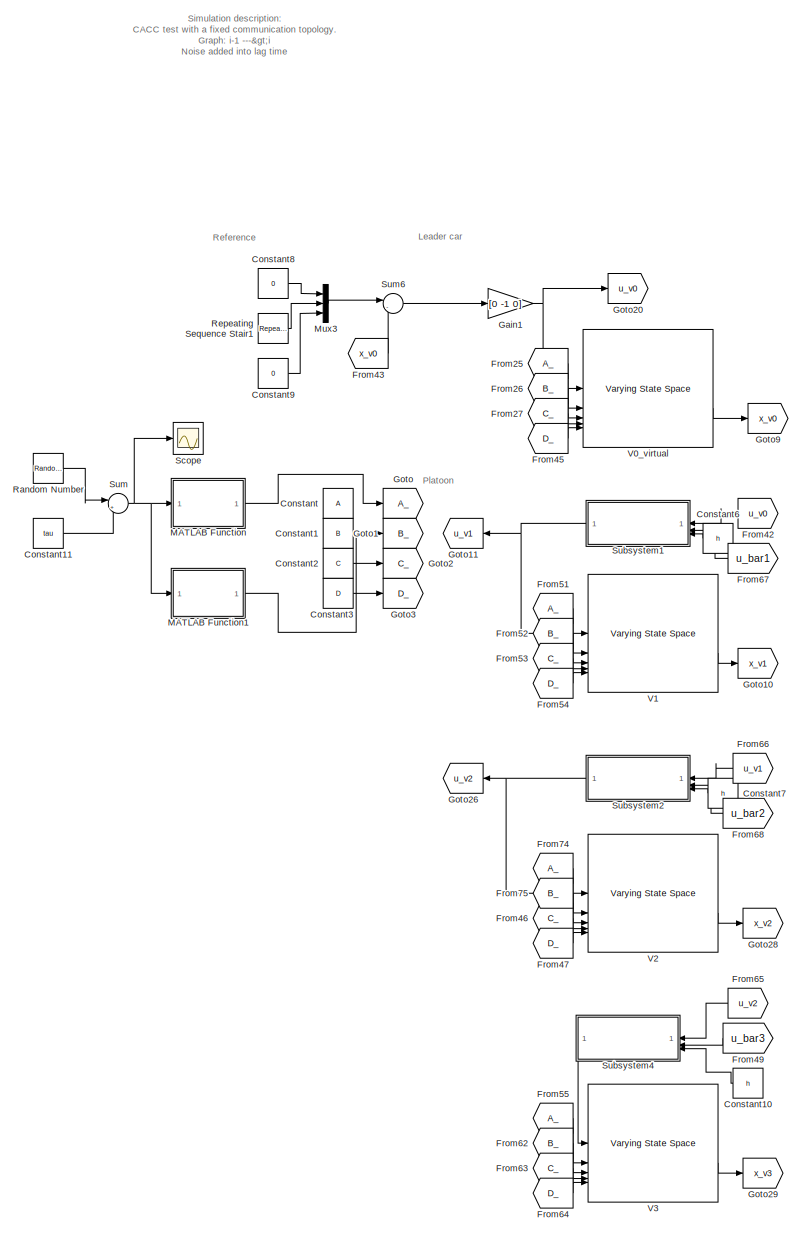
[diagram: root canvas - part 1/2, left side, full height]
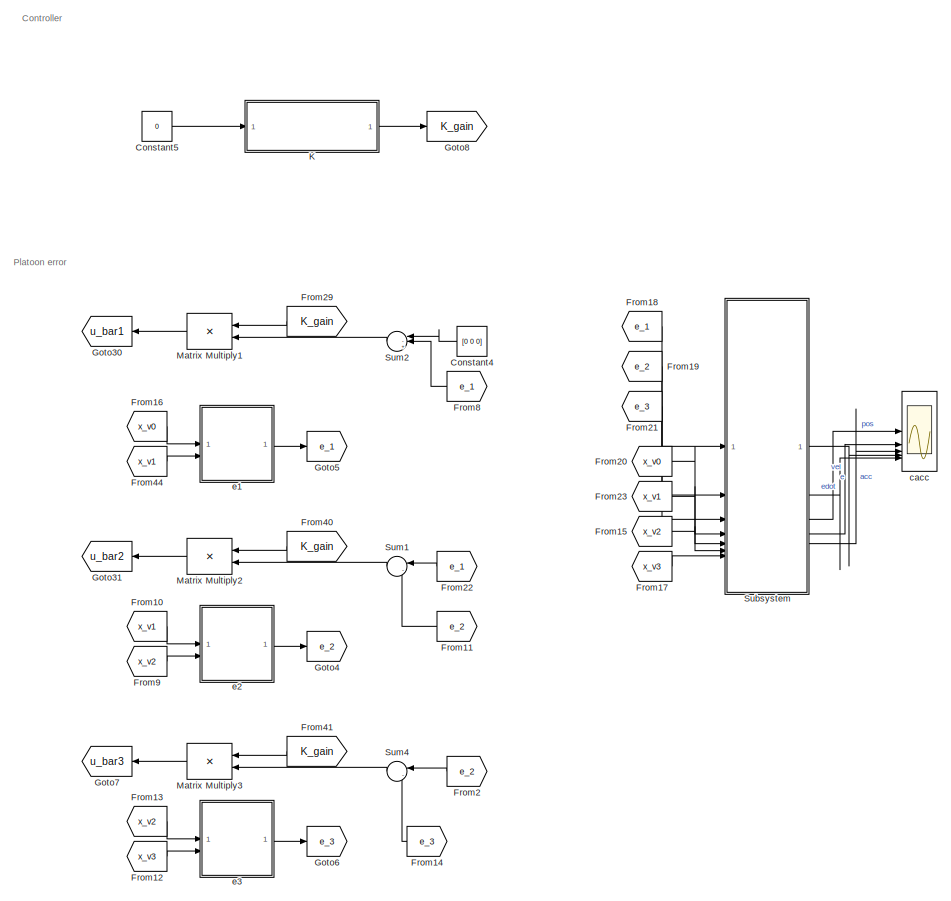
[diagram: root canvas - part 2/2, middle right region]
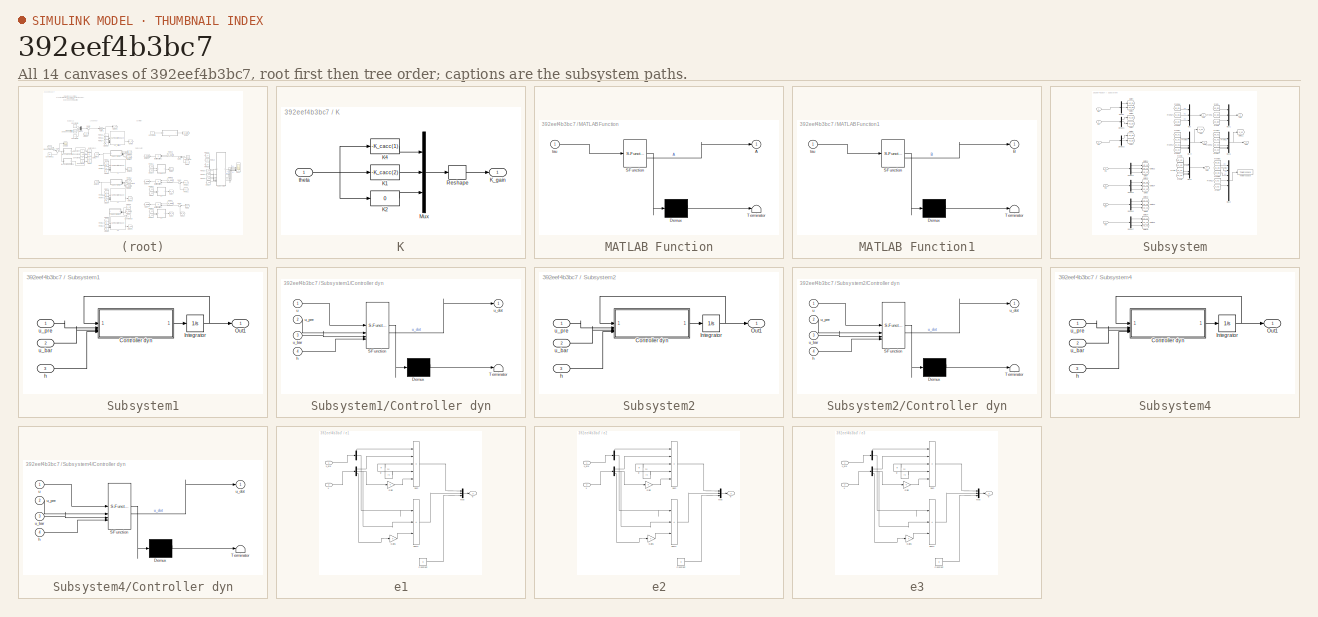
[diagram: thumbnail index - all 14 canvases of the model, root first then tree order]
MODEL slx_392eef4b3bc7
KIND model
CONFIG AbsTol = auto
CONFIG EnableMultiTasking = off
CONFIG FixedStep = auto
CONFIG MaxStep = auto
CONFIG MinStep = auto
CONFIG RelTol = 1e-3
CONFIG SampleTimeConstraint = Unconstrained
CONFIG SolverName = VariableStepAuto
CONFIG StartTime = 0.0
CONFIG StopTime = 60
BLOCK [Constant] Constant
  Value = A
BLOCK [Constant] Constant1
  Value = B
BLOCK [Constant] Constant10
  NameLocation = top
  Value = h
BLOCK [Constant] Constant11
  Value = tau
BLOCK [Constant] Constant2
  Value = C
BLOCK [Constant] Constant3
  Value = D
BLOCK [Constant] Constant4
  NameLocation = top
  Value = [0 0 0]
BLOCK [Constant] Constant5
  Value = 0
BLOCK [Constant] Constant6
  NameLocation = top
  Value = h
BLOCK [Constant] Constant7
  NameLocation = top
  Value = h
BLOCK [Constant] Constant8
  Value = 0
BLOCK [Constant] Constant9
  Value = 0
BLOCK [From] From10
  GotoTag = x_v1
BLOCK [From] From11
  GotoTag = e_2
  NameLocation = top
BLOCK [From] From12
  GotoTag = x_v3
BLOCK [From] From13
  GotoTag = x_v2
BLOCK [From] From14
  GotoTag = e_3
  NameLocation = top
BLOCK [From] From15
  GotoTag = x_v2
BLOCK [From] From16
  GotoTag = x_v0
BLOCK [From] From17
  GotoTag = x_v3
BLOCK [From] From18
  GotoTag = e_1
BLOCK [From] From19
  GotoTag = e_2
BLOCK [From] From2
  GotoTag = e_2
  NameLocation = top
BLOCK [From] From20
  GotoTag = x_v0
BLOCK [From] From21
  GotoTag = e_3
BLOCK [From] From22
  GotoTag = e_1
  NameLocation = top
BLOCK [From] From23
  GotoTag = x_v1
BLOCK [From] From25
  GotoTag = A_
BLOCK [From] From26
  GotoTag = B_
BLOCK [From] From27
  GotoTag = C_
BLOCK [From] From29
  GotoTag = K_gain
  NameLocation = top
BLOCK [From] From40
  GotoTag = K_gain
  NameLocation = top
BLOCK [From] From41
  GotoTag = K_gain
  NameLocation = top
BLOCK [From] From42
  GotoTag = u_v0
BLOCK [From] From43
  GotoTag = x_v0
BLOCK [From] From44
  GotoTag = x_v1
BLOCK [From] From45
  GotoTag = D_
BLOCK [From] From46
  GotoTag = C_
BLOCK [From] From47
  GotoTag = D_
BLOCK [From] From49
  GotoTag = u_bar3
BLOCK [From] From51
  GotoTag = A_
BLOCK [From] From52
  GotoTag = B_
BLOCK [From] From53
  GotoTag = C_
BLOCK [From] From54
  GotoTag = D_
BLOCK [From] From55
  GotoTag = A_
BLOCK [From] From62
  GotoTag = B_
BLOCK [From] From63
  GotoTag = C_
BLOCK [From] From64
  GotoTag = D_
BLOCK [From] From65
  GotoTag = u_v2
BLOCK [From] From66
  GotoTag = u_v1
BLOCK [From] From67
  GotoTag = u_bar1
BLOCK [From] From68
  GotoTag = u_bar2
BLOCK [From] From74
  GotoTag = A_
BLOCK [From] From75
  GotoTag = B_
BLOCK [From] From8
  GotoTag = e_1
  NameLocation = top
BLOCK [From] From9
  GotoTag = x_v2
BLOCK [Gain] Gain1
  Gain = [0 -1 0]
  Multiplication = Matrix(K*u) (u vector)
BLOCK [Goto] Goto
  GotoTag = A_
BLOCK [Goto] Goto1
  GotoTag = B_
BLOCK [Goto] Goto10
  GotoTag = x_v1
BLOCK [Goto] Goto11
  GotoTag = u_v1
  NameLocation = top
BLOCK [Goto] Goto2
  GotoTag = C_
BLOCK [Goto] Goto20
  GotoTag = u_v0
BLOCK [Goto] Goto26
  GotoTag = u_v2
  NameLocation = top
BLOCK [Goto] Goto28
  GotoTag = x_v2
BLOCK [Goto] Goto29
  GotoTag = x_v3
BLOCK [Goto] Goto3
  GotoTag = D_
BLOCK [Goto] Goto30
  GotoTag = u_bar1
  NameLocation = top
BLOCK [Goto] Goto31
  GotoTag = u_bar2
  NameLocation = top
BLOCK [Goto] Goto4
  GotoTag = e_2
  NameLocation = top
BLOCK [Goto] Goto5
  GotoTag = e_1
  NameLocation = top
BLOCK [Goto] Goto6
  GotoTag = e_3
  NameLocation = top
BLOCK [Goto] Goto7
  GotoTag = u_bar3
  NameLocation = top
BLOCK [Goto] Goto8
  GotoTag = K_gain
BLOCK [Goto] Goto9
  GotoTag = x_v0
BLOCK [SubSystem] K
BLOCK [Fcn] K/K1
  Expr = -K_cacc(2)
BLOCK [Fcn] K/K2
  Expr = 0
BLOCK [Fcn] K/K4
  Expr = -K_cacc(1)
BLOCK [Outport] K/K_gain
BLOCK [Mux] K/Mux
  DisplayOption = bar
  Inputs = 3
BLOCK [Reshape] K/Reshape
  OutputDimensionality = Customize
  OutputDimensions = [1,3]
BLOCK [Inport] K/theta
BLOCK [SubSystem] MATLAB Function
  ErrorFcn = Stateflow.Translate.translate
  LibrarySourceBlock = simulink/User-Defined\nFunctions/MATLAB Function
  PermitHierarchicalResolution = ExplicitOnly
  SFBlockType = MATLAB Function
  TreatAsAtomicUnit = on
BLOCK [Demux] MATLAB Function/ Demux 
  Outputs = 1
BLOCK [S-Function] MATLAB Function/ SFunction 
  EnableBusSupport = on
  FunctionName = sf_sfun
  PortCounts = [1 2]
  SFcnIsStateOwnerBlock = off
  SFunctionDeploymentMode = off
  Tag = Stateflow S-Function 2
BLOCK [Terminator] MATLAB Function/ Terminator 
BLOCK [Outport] MATLAB Function/A
BLOCK [Inport] MATLAB Function/tau
BLOCK [SubSystem] MATLAB Function1
  ErrorFcn = Stateflow.Translate.translate
  LibrarySourceBlock = simulink/User-Defined\nFunctions/MATLAB Function
  PermitHierarchicalResolution = ExplicitOnly
  SFBlockType = MATLAB Function
  TreatAsAtomicUnit = on
BLOCK [Demux] MATLAB Function1/ Demux 
  Outputs = 1
BLOCK [S-Function] MATLAB Function1/ SFunction 
  EnableBusSupport = on
  FunctionName = sf_sfun
  PortCounts = [1 2]
  SFcnIsStateOwnerBlock = off
  SFunctionDeploymentMode = off
  Tag = Stateflow S-Function 4
BLOCK [Terminator] MATLAB Function1/ Terminator 
BLOCK [Outport] MATLAB Function1/B
BLOCK [Inport] MATLAB Function1/tau
BLOCK [Product] Matrix Multiply1
  Multiplication = Matrix(*)
  NameLocation = top
BLOCK [Product] Matrix Multiply2
  Multiplication = Matrix(*)
  NameLocation = top
BLOCK [Product] Matrix Multiply3
  Multiplication = Matrix(*)
  NameLocation = top
BLOCK [Mux] Mux3
  DisplayOption = bar
  Inputs = 3
BLOCK [RandomNumber] Random Number
  SampleTime = 0.5
  Variance = 0.001
BLOCK [Reference] Repeating Sequence Stair1  REF=simulink/Sources/Repeating
Sequence
Stair
  SourceBlock = simulink/Sources/Repeating\nSequence\nStair
  SourceType = Repeating Sequence Stair
BLOCK [Scope] Scope
  Floating = off
  NumInputPorts = 1
  ScopeSpecificationString = Simulink.scopes.TimeScopeBlockCfg('CurrentConfiguration', extmgr.ConfigurationSet(extmgr.Configuration('Core','General UI',true),extmgr.Configuration('Core','Source UI',true),extmgr.Configuration('Sources','WiredSimulink',true,'DataLoggingVariableName','ScopeData1'),extmgr.Configuration('Visuals','Time Domain',true,'SerializedDisplays',{struct('MinYLimReal','0.00369','MaxYLimReal','0.18162','YLabe...<+1389ch>
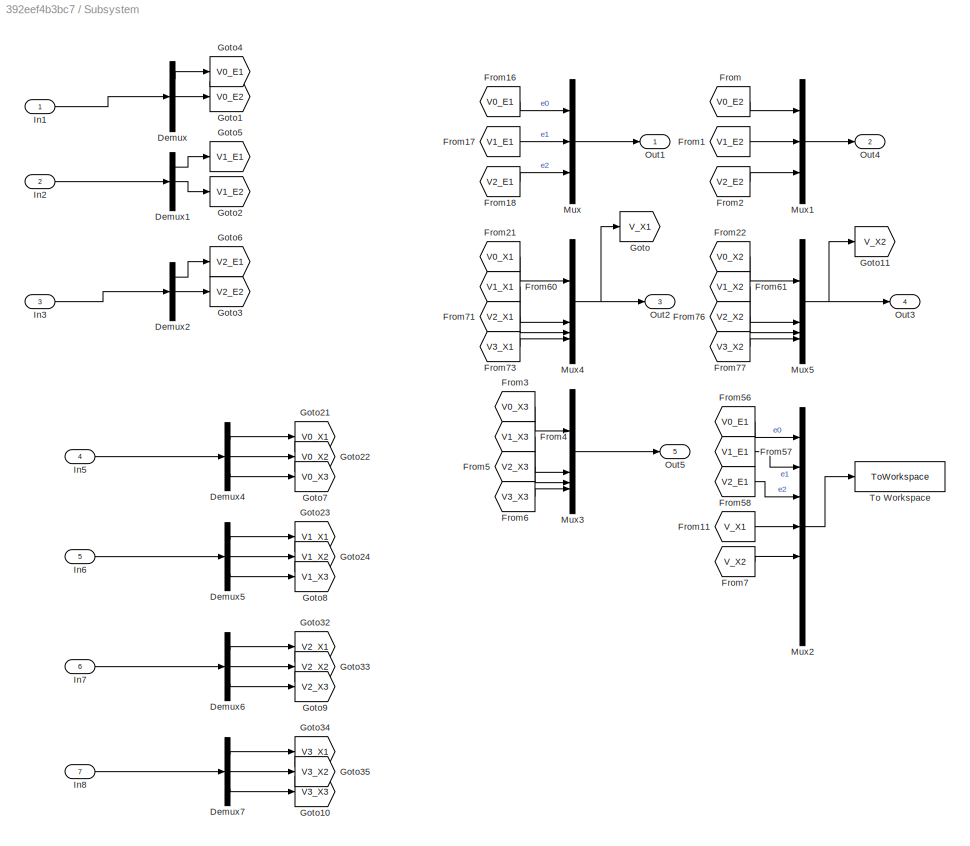
BLOCK [SubSystem] Subsystem
BLOCK [Demux] Subsystem/Demux
  Outputs = 3
BLOCK [Demux] Subsystem/Demux1
  Outputs = 3
BLOCK [Demux] Subsystem/Demux2
  Outputs = 3
BLOCK [Demux] Subsystem/Demux4
  Outputs = 3
BLOCK [Demux] Subsystem/Demux5
  Outputs = 3
BLOCK [Demux] Subsystem/Demux6
  Outputs = 3
BLOCK [Demux] Subsystem/Demux7
  Outputs = 3
BLOCK [From] Subsystem/From
  GotoTag = V0_E2
BLOCK [From] Subsystem/From1
  GotoTag = V1_E2
BLOCK [From] Subsystem/From11
  GotoTag = V_X1
BLOCK [From] Subsystem/From16
  GotoTag = V0_E1
BLOCK [From] Subsystem/From17
  GotoTag = V1_E1
BLOCK [From] Subsystem/From18
  GotoTag = V2_E1
BLOCK [From] Subsystem/From2
  GotoTag = V2_E2
BLOCK [From] Subsystem/From21
  GotoTag = V0_X1
BLOCK [From] Subsystem/From22
  GotoTag = V0_X2
BLOCK [From] Subsystem/From3
  GotoTag = V0_X3
BLOCK [From] Subsystem/From4
  GotoTag = V1_X3
BLOCK [From] Subsystem/From5
  GotoTag = V2_X3
BLOCK [From] Subsystem/From56
  GotoTag = V0_E1
BLOCK [From] Subsystem/From57
  GotoTag = V1_E1
BLOCK [From] Subsystem/From58
  GotoTag = V2_E1
BLOCK [From] Subsystem/From6
  GotoTag = V3_X3
BLOCK [From] Subsystem/From60
  GotoTag = V1_X1
BLOCK [From] Subsystem/From61
  GotoTag = V1_X2
BLOCK [From] Subsystem/From7
  GotoTag = V_X2
BLOCK [From] Subsystem/From71
  GotoTag = V2_X1
BLOCK [From] Subsystem/From73
  GotoTag = V3_X1
BLOCK [From] Subsystem/From76
  GotoTag = V2_X2
BLOCK [From] Subsystem/From77
  GotoTag = V3_X2
BLOCK [Goto] Subsystem/Goto
  GotoTag = V_X1
BLOCK [Goto] Subsystem/Goto1
  GotoTag = V0_E2
BLOCK [Goto] Subsystem/Goto10
  GotoTag = V3_X3
BLOCK [Goto] Subsystem/Goto11
  GotoTag = V_X2
BLOCK [Goto] Subsystem/Goto2
  GotoTag = V1_E2
BLOCK [Goto] Subsystem/Goto21
  GotoTag = V0_X1
BLOCK [Goto] Subsystem/Goto22
  GotoTag = V0_X2
BLOCK [Goto] Subsystem/Goto23
  GotoTag = V1_X1
BLOCK [Goto] Subsystem/Goto24
  GotoTag = V1_X2
BLOCK [Goto] Subsystem/Goto3
  GotoTag = V2_E2
BLOCK [Goto] Subsystem/Goto32
  GotoTag = V2_X1
BLOCK [Goto] Subsystem/Goto33
  GotoTag = V2_X2
BLOCK [Goto] Subsystem/Goto34
  GotoTag = V3_X1
BLOCK [Goto] Subsystem/Goto35
  GotoTag = V3_X2
BLOCK [Goto] Subsystem/Goto4
  GotoTag = V0_E1
BLOCK [Goto] Subsystem/Goto5
  GotoTag = V1_E1
BLOCK [Goto] Subsystem/Goto6
  GotoTag = V2_E1
BLOCK [Goto] Subsystem/Goto7
  GotoTag = V0_X3
BLOCK [Goto] Subsystem/Goto8
  GotoTag = V1_X3
BLOCK [Goto] Subsystem/Goto9
  GotoTag = V2_X3
BLOCK [Inport] Subsystem/In1
BLOCK [Inport] Subsystem/In2
  Port = 2
BLOCK [Inport] Subsystem/In3
  Port = 3
BLOCK [Inport] Subsystem/In5
  Port = 4
BLOCK [Inport] Subsystem/In6
  Port = 5
BLOCK [Inport] Subsystem/In7
  Port = 6
BLOCK [Inport] Subsystem/In8
  Port = 7
BLOCK [Mux] Subsystem/Mux
  DisplayOption = bar
  Inputs = 3
BLOCK [Mux] Subsystem/Mux1
  DisplayOption = bar
  Inputs = 3
BLOCK [Mux] Subsystem/Mux2
  DisplayOption = bar
  Inputs = 7
BLOCK [Mux] Subsystem/Mux3
  DisplayOption = bar
BLOCK [Mux] Subsystem/Mux4
  DisplayOption = bar
BLOCK [Mux] Subsystem/Mux5
  DisplayOption = bar
BLOCK [Outport] Subsystem/Out1
BLOCK [Outport] Subsystem/Out2
  Port = 3
BLOCK [Outport] Subsystem/Out3
  Port = 4
BLOCK [Outport] Subsystem/Out4
  Port = 2
BLOCK [Outport] Subsystem/Out5
  Port = 5
BLOCK [ToWorkspace] Subsystem/To Workspace
  FixptAsFi = on
  MaxDataPoints = inf
  SampleTime = -1
  SaveFormat = Timeseries
  VariableName = monitor
BLOCK [SubSystem] Subsystem1
  NameLocation = top
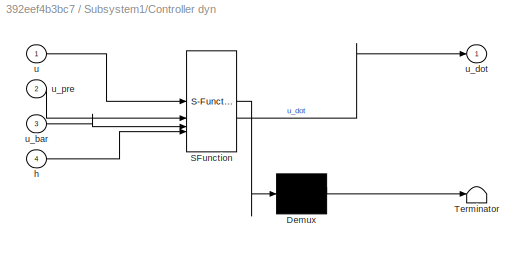
BLOCK [SubSystem] Subsystem1/Controller dyn
  ErrorFcn = Stateflow.Translate.translate
  LibrarySourceBlock = simulink/User-Defined\nFunctions/MATLAB Function
  PermitHierarchicalResolution = ExplicitOnly
  SFBlockType = MATLAB Function
  TreatAsAtomicUnit = on
BLOCK [Demux] Subsystem1/Controller dyn/ Demux 
  Outputs = 1
BLOCK [S-Function] Subsystem1/Controller dyn/ SFunction 
  EnableBusSupport = on
  FunctionName = sf_sfun
  PortCounts = [4 2]
  SFcnIsStateOwnerBlock = off
  SFunctionDeploymentMode = off
  Tag = Stateflow S-Function 1
BLOCK [Terminator] Subsystem1/Controller dyn/ Terminator 
BLOCK [Inport] Subsystem1/Controller dyn/h
  Port = 4
BLOCK [Inport] Subsystem1/Controller dyn/u
BLOCK [Inport] Subsystem1/Controller dyn/u_bar
  Port = 3
BLOCK [Outport] Subsystem1/Controller dyn/u_dot
BLOCK [Inport] Subsystem1/Controller dyn/u_pre
  Port = 2
BLOCK [Integrator] Subsystem1/Integrator
BLOCK [Outport] Subsystem1/Out1
BLOCK [Inport] Subsystem1/h
  Port = 3
BLOCK [Inport] Subsystem1/u_bar
  Port = 2
BLOCK [Inport] Subsystem1/u_pre
BLOCK [SubSystem] Subsystem2
  NameLocation = top
BLOCK [SubSystem] Subsystem2/Controller dyn
  ErrorFcn = Stateflow.Translate.translate
  LibrarySourceBlock = simulink/User-Defined\nFunctions/MATLAB Function
  PermitHierarchicalResolution = ExplicitOnly
  SFBlockType = MATLAB Function
  TreatAsAtomicUnit = on
BLOCK [Demux] Subsystem2/Controller dyn/ Demux 
  Outputs = 1
BLOCK [S-Function] Subsystem2/Controller dyn/ SFunction 
  EnableBusSupport = on
  FunctionName = sf_sfun
  PortCounts = [4 2]
  SFcnIsStateOwnerBlock = off
  SFunctionDeploymentMode = off
  Tag = Stateflow S-Function 3
BLOCK [Terminator] Subsystem2/Controller dyn/ Terminator 
BLOCK [Inport] Subsystem2/Controller dyn/h
  Port = 4
BLOCK [Inport] Subsystem2/Controller dyn/u
BLOCK [Inport] Subsystem2/Controller dyn/u_bar
  Port = 3
BLOCK [Outport] Subsystem2/Controller dyn/u_dot
BLOCK [Inport] Subsystem2/Controller dyn/u_pre
  Port = 2
BLOCK [Integrator] Subsystem2/Integrator
BLOCK [Outport] Subsystem2/Out1
BLOCK [Inport] Subsystem2/h
  Port = 3
BLOCK [Inport] Subsystem2/u_bar
  Port = 2
BLOCK [Inport] Subsystem2/u_pre
BLOCK [SubSystem] Subsystem4
  NameLocation = top
BLOCK [SubSystem] Subsystem4/Controller dyn
  ErrorFcn = Stateflow.Translate.translate
  LibrarySourceBlock = simulink/User-Defined\nFunctions/MATLAB Function
  PermitHierarchicalResolution = ExplicitOnly
  SFBlockType = MATLAB Function
  TreatAsAtomicUnit = on
BLOCK [Demux] Subsystem4/Controller dyn/ Demux 
  Outputs = 1
BLOCK [S-Function] Subsystem4/Controller dyn/ SFunction 
  EnableBusSupport = on
  FunctionName = sf_sfun
  PortCounts = [4 2]
  SFcnIsStateOwnerBlock = off
  SFunctionDeploymentMode = off
  Tag = Stateflow S-Function 7
BLOCK [Terminator] Subsystem4/Controller dyn/ Terminator 
BLOCK [Inport] Subsystem4/Controller dyn/h
  Port = 4
BLOCK [Inport] Subsystem4/Controller dyn/u
BLOCK [Inport] Subsystem4/Controller dyn/u_bar
  Port = 3
BLOCK [Outport] Subsystem4/Controller dyn/u_dot
BLOCK [Inport] Subsystem4/Controller dyn/u_pre
  Port = 2
BLOCK [Integrator] Subsystem4/Integrator
BLOCK [Outport] Subsystem4/Out1
BLOCK [Inport] Subsystem4/h
  Port = 3
BLOCK [Inport] Subsystem4/u_bar
  Port = 2
BLOCK [Inport] Subsystem4/u_pre
BLOCK [Sum] Sum
  Inputs = |++
BLOCK [Sum] Sum1
  Inputs = |-+
  NameLocation = top
BLOCK [Sum] Sum2
  Inputs = |-++
  NameLocation = top
BLOCK [Sum] Sum4
  Inputs = |-+
  NameLocation = top
BLOCK [Sum] Sum6
  Inputs = |-+
BLOCK [Reference] V0_virtual  REF=cstblocks/Linear Parameter Varying/Varying State Space
  SourceBlock = cstblocks/Linear Parameter Varying/Varying State Space
  SourceType = Varying State Space
BLOCK [Reference] V1  REF=cstblocks/Linear Parameter Varying/Varying State Space
  SourceBlock = cstblocks/Linear Parameter Varying/Varying State Space
  SourceType = Varying State Space
BLOCK [Reference] V2  REF=cstblocks/Linear Parameter Varying/Varying State Space
  SourceBlock = cstblocks/Linear Parameter Varying/Varying State Space
  SourceType = Varying State Space
BLOCK [Reference] V3  REF=cstblocks/Linear Parameter Varying/Varying State Space
  SourceBlock = cstblocks/Linear Parameter Varying/Varying State Space
  SourceType = Varying State Space
BLOCK [Scope] cacc
  Floating = off
  NumInputPorts = 5
  ScopeSpecificationString = Simulink.scopes.TimeScopeBlockCfg('CurrentConfiguration', extmgr.ConfigurationSet(extmgr.Configuration('Core','General UI',true),extmgr.Configuration('Core','Source UI',true),extmgr.Configuration('Sources','WiredSimulink',true),extmgr.Configuration('Visuals','Time Domain',true,'SerializedDisplays',{struct('MinYLimReal','-93.04566','MaxYLimReal','776.42448','YLabelReal','','MinYLimMag','0.00000','M...<+5043ch>
BLOCK [SubSystem] e1
BLOCK [Demux] e1/ 
  Outputs = 3
BLOCK [Demux] e1/   
  Outputs = 3
BLOCK [Constant] e1/Constant
  Value = 0
BLOCK [Gain] e1/Gain
  Gain = h
BLOCK [Gain] e1/Gain1
  Gain = h
BLOCK [Mux] e1/Mux
  DisplayOption = bar
  Inputs = 3
BLOCK [Sum] e1/Sum
  IconShape = rectangular
  Inputs = |+----
BLOCK [Sum] e1/Sum1
  IconShape = rectangular
  Inputs = |+--
BLOCK [Outport] e1/e
BLOCK [Constant] e1/lv
  Value = lv
BLOCK [Constant] e1/rv
  Value = rv
BLOCK [Inport] e1/x
  Port = 2
BLOCK [Inport] e1/x_pre
BLOCK [SubSystem] e2
BLOCK [Demux] e2/ 
  Outputs = 3
BLOCK [Demux] e2/   
  Outputs = 3
BLOCK [Constant] e2/Constant
  Value = 0
BLOCK [Gain] e2/Gain
  Gain = h
BLOCK [Gain] e2/Gain1
  Gain = h
BLOCK [Mux] e2/Mux
  DisplayOption = bar
  Inputs = 3
BLOCK [Sum] e2/Sum
  IconShape = rectangular
  Inputs = |+----
BLOCK [Sum] e2/Sum1
  IconShape = rectangular
  Inputs = |+--
BLOCK [Outport] e2/e
BLOCK [Constant] e2/lv
  Value = lv
BLOCK [Constant] e2/rv
  Value = rv
BLOCK [Inport] e2/x
  Port = 2
BLOCK [Inport] e2/x_pre
BLOCK [SubSystem] e3
BLOCK [Demux] e3/ 
  Outputs = 3
BLOCK [Demux] e3/   
  Outputs = 3
BLOCK [Constant] e3/Constant
  Value = 0
BLOCK [Gain] e3/Gain
  Gain = h
BLOCK [Gain] e3/Gain1
  Gain = h
BLOCK [Mux] e3/Mux
  DisplayOption = bar
  Inputs = 3
BLOCK [Sum] e3/Sum
  IconShape = rectangular
  Inputs = |+----
BLOCK [Sum] e3/Sum1
  IconShape = rectangular
  Inputs = |+--
BLOCK [Outport] e3/e
BLOCK [Constant] e3/lv
  Value = lv
BLOCK [Constant] e3/rv
  Value = rv
BLOCK [Inport] e3/x
  Port = 2
BLOCK [Inport] e3/x_pre
ANNOTATION (root): Simulation description: CACC test with a fixed communication topology. Graph: i-1 --->i Noise added into lag time
ANNOTATION (root): Controller
ANNOTATION (root): Leader car
ANNOTATION (root): Platoon
ANNOTATION (root): Platoon error
ANNOTATION (root): Reference
LINE Constant10:1 -> Subsystem4:3
LINE Constant11:1 -> Sum:2
LINE Constant2:1 -> Goto2:1
LINE Constant3:1 -> Goto3:1
LINE Constant4:1 -> Sum2:1
LINE Constant5:1 -> K:1
LINE Constant6:1 -> Subsystem1:3
LINE Constant7:1 -> Subsystem2:3
LINE Constant8:1 -> Mux3:1
LINE Constant9:1 -> Mux3:3
LINE From10:1 -> e2:1
LINE From11:1 -> Sum1:2
LINE From12:1 -> e3:2
LINE From13:1 -> e3:1
LINE From14:1 -> Sum4:2
LINE From15:1 -> Subsystem:6
LINE From16:1 -> e1:1
LINE From17:1 -> Subsystem:7
LINE From18:1 -> Subsystem:1
LINE From19:1 -> Subsystem:2
LINE From20:1 -> Subsystem:4
LINE From21:1 -> Subsystem:3
LINE From22:1 -> Sum1:1
LINE From23:1 -> Subsystem:5
LINE From25:1 -> V0_virtual:2
LINE From26:1 -> V0_virtual:3
LINE From27:1 -> V0_virtual:4
LINE From29:1 -> Matrix Multiply1:1
LINE From2:1 -> Sum4:1
LINE From40:1 -> Matrix Multiply2:1
LINE From41:1 -> Matrix Multiply3:1
LINE From42:1 -> Subsystem1:1
LINE From43:1 -> Sum6:2
LINE From44:1 -> e1:2
LINE From45:1 -> V0_virtual:5
LINE From46:1 -> V2:4
LINE From47:1 -> V2:5
LINE From49:1 -> Subsystem4:2
LINE From51:1 -> V1:2
LINE From52:1 -> V1:3
LINE From53:1 -> V1:4
LINE From54:1 -> V1:5
LINE From55:1 -> V3:2
LINE From62:1 -> V3:3
LINE From63:1 -> V3:4
LINE From64:1 -> V3:5
LINE From65:1 -> Subsystem4:1
LINE From66:1 -> Subsystem2:1
LINE From67:1 -> Subsystem1:2
LINE From68:1 -> Subsystem2:2
LINE From74:1 -> V2:2
LINE From75:1 -> V2:3
LINE From8:1 -> Sum2:2
LINE From9:1 -> e2:2
NET Gain1:1 -> Goto20:1, V0_virtual:1
LINE K/K1:1 -> K/Mux:2
LINE K/K2:1 -> K/Mux:3
LINE K/K4:1 -> K/Mux:1
LINE K/Mux:1 -> K/Reshape:1
LINE K/Reshape:1 -> K/K_gain:1
NET K/theta:1 -> K/K1:1, K/K2:1, K/K4:1
LINE K:1 -> Goto8:1
LINE MATLAB Function1:1 -> Goto1:1
LINE MATLAB Function:1 -> Goto:1
LINE Matrix Multiply1:1 -> Goto30:1
LINE Matrix Multiply2:1 -> Goto31:1
LINE Matrix Multiply3:1 -> Goto7:1
LINE Mux3:1 -> Sum6:1
LINE Random Number:1 -> Sum:1
LINE Repeating Sequence Stair1:1 -> Mux3:2
LINE Subsystem/Demux1:1 -> Subsystem/Goto5:1
LINE Subsystem/Demux1:2 -> Subsystem/Goto2:1
LINE Subsystem/Demux2:1 -> Subsystem/Goto6:1
LINE Subsystem/Demux2:2 -> Subsystem/Goto3:1
LINE Subsystem/Demux4:1 -> Subsystem/Goto21:1
LINE Subsystem/Demux4:2 -> Subsystem/Goto22:1
LINE Subsystem/Demux4:3 -> Subsystem/Goto7:1
LINE Subsystem/Demux5:1 -> Subsystem/Goto23:1
LINE Subsystem/Demux5:2 -> Subsystem/Goto24:1
LINE Subsystem/Demux5:3 -> Subsystem/Goto8:1
LINE Subsystem/Demux6:1 -> Subsystem/Goto32:1
LINE Subsystem/Demux6:2 -> Subsystem/Goto33:1
LINE Subsystem/Demux6:3 -> Subsystem/Goto9:1
LINE Subsystem/Demux7:1 -> Subsystem/Goto34:1
LINE Subsystem/Demux7:2 -> Subsystem/Goto35:1
LINE Subsystem/Demux7:3 -> Subsystem/Goto10:1
LINE Subsystem/Demux:1 -> Subsystem/Goto4:1
LINE Subsystem/Demux:2 -> Subsystem/Goto1:1
LINE Subsystem/From11:1 -> Subsystem/Mux2:4
LINE Subsystem/From16:1 -> Subsystem/Mux:1
LINE Subsystem/From17:1 -> Subsystem/Mux:2
LINE Subsystem/From18:1 -> Subsystem/Mux:3
LINE Subsystem/From1:1 -> Subsystem/Mux1:2
LINE Subsystem/From21:1 -> Subsystem/Mux4:1
LINE Subsystem/From22:1 -> Subsystem/Mux5:1
LINE Subsystem/From2:1 -> Subsystem/Mux1:3
LINE Subsystem/From3:1 -> Subsystem/Mux3:1
LINE Subsystem/From4:1 -> Subsystem/Mux3:2
LINE Subsystem/From56:1 -> Subsystem/Mux2:1
LINE Subsystem/From57:1 -> Subsystem/Mux2:2
LINE Subsystem/From58:1 -> Subsystem/Mux2:3
LINE Subsystem/From5:1 -> Subsystem/Mux3:3
LINE Subsystem/From60:1 -> Subsystem/Mux4:2
LINE Subsystem/From61:1 -> Subsystem/Mux5:2
LINE Subsystem/From6:1 -> Subsystem/Mux3:4
LINE Subsystem/From71:1 -> Subsystem/Mux4:3
LINE Subsystem/From73:1 -> Subsystem/Mux4:4
LINE Subsystem/From76:1 -> Subsystem/Mux5:3
LINE Subsystem/From77:1 -> Subsystem/Mux5:4
LINE Subsystem/From7:1 -> Subsystem/Mux2:5
LINE Subsystem/From:1 -> Subsystem/Mux1:1
LINE Subsystem/In1:1 -> Subsystem/Demux:1
LINE Subsystem/In2:1 -> Subsystem/Demux1:1
LINE Subsystem/In3:1 -> Subsystem/Demux2:1
LINE Subsystem/In5:1 -> Subsystem/Demux4:1
LINE Subsystem/In6:1 -> Subsystem/Demux5:1
LINE Subsystem/In7:1 -> Subsystem/Demux6:1
LINE Subsystem/In8:1 -> Subsystem/Demux7:1
LINE Subsystem/Mux1:1 -> Subsystem/Out4:1
LINE Subsystem/Mux2:1 -> Subsystem/To Workspace:1
LINE Subsystem/Mux3:1 -> Subsystem/Out5:1
NET Subsystem/Mux4:1 -> Subsystem/Goto:1, Subsystem/Out2:1
NET Subsystem/Mux5:1 -> Subsystem/Goto11:1, Subsystem/Out3:1
LINE Subsystem/Mux:1 -> Subsystem/Out1:1
LINE Subsystem1/Controller dyn:1 -> Subsystem1/Integrator:1
NET Subsystem1/Integrator:1 -> Subsystem1/Controller dyn:1, Subsystem1/Out1:1
LINE Subsystem1/h:1 -> Subsystem1/Controller dyn:4
LINE Subsystem1/u_bar:1 -> Subsystem1/Controller dyn:3
LINE Subsystem1/u_pre:1 -> Subsystem1/Controller dyn:2
NET Subsystem1:1 -> Goto11:1, V1:1
LINE Subsystem2/Controller dyn:1 -> Subsystem2/Integrator:1
NET Subsystem2/Integrator:1 -> Subsystem2/Controller dyn:1, Subsystem2/Out1:1
LINE Subsystem2/h:1 -> Subsystem2/Controller dyn:4
LINE Subsystem2/u_bar:1 -> Subsystem2/Controller dyn:3
LINE Subsystem2/u_pre:1 -> Subsystem2/Controller dyn:2
NET Subsystem2:1 -> Goto26:1, V2:1
LINE Subsystem4/Controller dyn:1 -> Subsystem4/Integrator:1
NET Subsystem4/Integrator:1 -> Subsystem4/Controller dyn:1, Subsystem4/Out1:1
LINE Subsystem4/h:1 -> Subsystem4/Controller dyn:4
LINE Subsystem4/u_bar:1 -> Subsystem4/Controller dyn:3
LINE Subsystem4/u_pre:1 -> Subsystem4/Controller dyn:2
LINE Subsystem4:1 -> V3:1
LINE Subsystem:1 -> cacc:4
LINE Subsystem:2 -> cacc:5
LINE Subsystem:3 -> cacc:1
LINE Subsystem:4 -> cacc:2
LINE Subsystem:5 -> cacc:3
LINE Sum1:1 -> Matrix Multiply2:2
LINE Sum2:1 -> Matrix Multiply1:2
LINE Sum4:1 -> Matrix Multiply3:2
LINE Sum6:1 -> Gain1:1
NET Sum:1 -> MATLAB Function1:1, MATLAB Function:1, Scope:1
LINE V0_virtual:2 -> Goto9:1
LINE V1:2 -> Goto10:1
LINE V2:2 -> Goto28:1
LINE V3:2 -> Goto29:1
LINE e1/   :1 -> e1/Sum:2
NET e1/   :2 -> e1/Gain:1, e1/Sum1:2
LINE e1/   :3 -> e1/Gain1:1
LINE e1/ :1 -> e1/Sum:1
LINE e1/ :2 -> e1/Sum1:1
LINE e1/Constant:1 -> e1/Mux:3
LINE e1/Gain1:1 -> e1/Sum1:3
LINE e1/Gain:1 -> e1/Sum:5
LINE e1/Mux:1 -> e1/e:1
LINE e1/Sum1:1 -> e1/Mux:2
LINE e1/Sum:1 -> e1/Mux:1
LINE e1/lv:1 -> e1/Sum:3
LINE e1/rv:1 -> e1/Sum:4
LINE e1/x:1 -> e1/   :1
LINE e1/x_pre:1 -> e1/ :1
LINE e1:1 -> Goto5:1
LINE e2/   :1 -> e2/Sum:2
NET e2/   :2 -> e2/Gain:1, e2/Sum1:2
LINE e2/   :3 -> e2/Gain1:1
LINE e2/ :1 -> e2/Sum:1
LINE e2/ :2 -> e2/Sum1:1
LINE e2/Constant:1 -> e2/Mux:3
LINE e2/Gain1:1 -> e2/Sum1:3
LINE e2/Gain:1 -> e2/Sum:5
LINE e2/Mux:1 -> e2/e:1
LINE e2/Sum1:1 -> e2/Mux:2
LINE e2/Sum:1 -> e2/Mux:1
LINE e2/lv:1 -> e2/Sum:3
LINE e2/rv:1 -> e2/Sum:4
LINE e2/x:1 -> e2/   :1
LINE e2/x_pre:1 -> e2/ :1
LINE e2:1 -> Goto4:1
LINE e3/   :1 -> e3/Sum:2
NET e3/   :2 -> e3/Gain:1, e3/Sum1:2
LINE e3/   :3 -> e3/Gain1:1
LINE e3/ :1 -> e3/Sum:1
LINE e3/ :2 -> e3/Sum1:1
LINE e3/Constant:1 -> e3/Mux:3
LINE e3/Gain1:1 -> e3/Sum1:3
LINE e3/Gain:1 -> e3/Sum:5
LINE e3/Mux:1 -> e3/e:1
LINE e3/Sum1:1 -> e3/Mux:2
LINE e3/Sum:1 -> e3/Mux:1
LINE e3/lv:1 -> e3/Sum:3
LINE e3/rv:1 -> e3/Sum:4
LINE e3/x:1 -> e3/   :1
LINE e3/x_pre:1 -> e3/ :1
LINE e3:1 -> Goto6:1
note: NET lines group one-source signal fan-out (src -> all destinations, sorted); 1:1 wires keep LINE
CHART Subsystem1/Controller dyn states=1 transitions=1
  STATE_LABEL 'eML_blk_kernel()'
  STATE_LABEL 'SCRIPT:\nfunction u_dot = cacc(u, u_pre, u_bar,h)\n\nh = h; % second\n\nu_dot = -1/h * u + 1/h * (u_pre - u_bar);\n\nend'
CHART MATLAB Function states=1 transitions=1
  STATE_LABEL 'eML_blk_kernel()'
  STATE_LABEL 'SCRIPT:\nfunction A = fcn(tau)\n\nA = [0 1 0; 0 0 1; 0 0 -1/tau];\n\nend\n\n'
CHART Subsystem2/Controller dyn states=1 transitions=1
  STATE_LABEL 'eML_blk_kernel()'
  STATE_LABEL 'SCRIPT:\nfunction u_dot = cacc(u, u_pre, u_bar,h)\n\nh = h; % second\n\nu_dot = -1/h * u + 1/h * (u_pre - u_bar);\n\nend'
CHART MATLAB Function1 states=1 transitions=1
  STATE_LABEL 'eML_blk_kernel()'
  STATE_LABEL 'SCRIPT:\nfunction B = fcn(tau)\n\nB = [0; 0; 1/tau];\n\nend\n\n'
CHART Subsystem4/Controller dyn states=1 transitions=1
  STATE_LABEL 'eML_blk_kernel()'
  STATE_LABEL 'SCRIPT:\nfunction u_dot = cacc(u, u_pre, u_bar,h)\n\nh = h; % second\n\nu_dot = -1/h * u + 1/h * (u_pre - u_bar);\n\nend'
CHART  states=0 transitions=0
CHART  states=0 transitions=0
CHART  states=0 transitions=0
CHART  states=0 transitions=0
CHART  states=0 transitions=0
